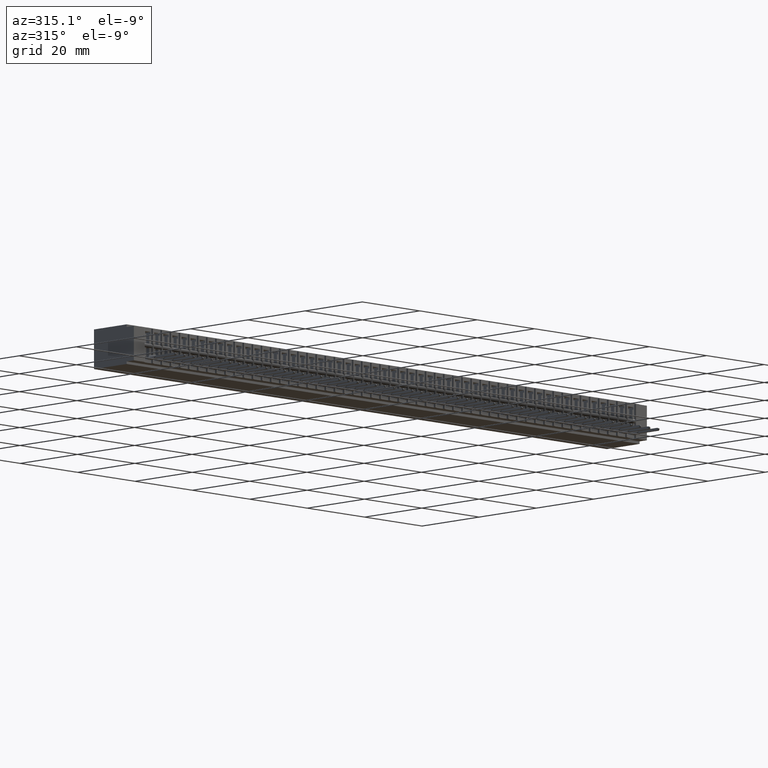
[diagram: clean part render]
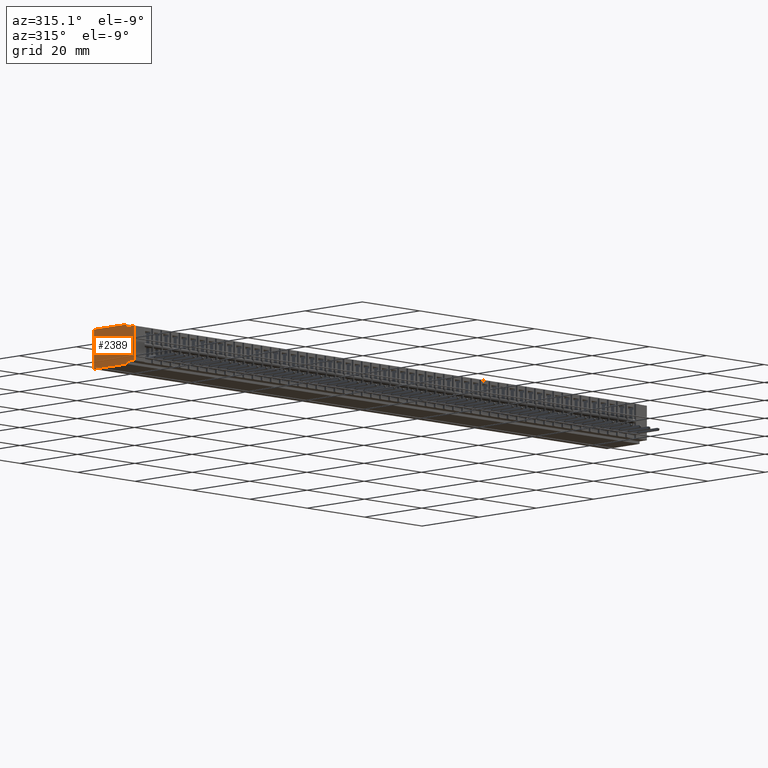
[diagram: same view with one face highlighted and labeled with its STEP entity id]
A machine part, auxiliary view. The second image highlights one B-rep face of the part: STEP entity #2389.
In plain terms, the highlighted planar face has unit normal (1, 0, 0).
Its self-contained STEP definition (entity closure, byte-faithful):
#2234 = EDGE_CURVE ( 'NONE', #74896, #15088, #69660, .T. ) ;
#2389 = ADVANCED_FACE ( 'NONE', ( #36871 ), #19117, .F. ) ;
#5764 = DIRECTION ( 'NONE',  ( 1.000000000000000000, -0.0000000000000000000, 0.0000000000000000000 ) ) ;
#6501 = ORIENTED_EDGE ( 'NONE', *, *, #11065, .F. ) ;
#6532 = LINE ( 'NONE', #67930, #53579 ) ;
#7781 = VECTOR ( 'NONE', #62964, 39.37007874015748143 ) ;
#8674 = CARTESIAN_POINT ( 'NONE',  ( 0.0000000000000000000, 0.0000000000000000000, 0.0000000000000000000 ) ) ;
#9637 = CARTESIAN_POINT ( 'NONE',  ( 0.0000000000000000000, 0.1000000000000000056, -0.02500000000000000486 ) ) ;
#11065 = EDGE_CURVE ( 'NONE', #69570, #74896, #31848, .T. ) ;
#11125 = ORIENTED_EDGE ( 'NONE', *, *, #40583, .F. ) ;
#15088 = VERTEX_POINT ( 'NONE', #70111 ) ;
#15451 = CARTESIAN_POINT ( 'NONE',  ( 0.0000000000000000000, 0.0000000000000000000, -0.02500000000000000486 ) ) ;
#15519 = VERTEX_POINT ( 'NONE', #38536 ) ;
#15993 = VECTOR ( 'NONE', #19999, 39.37007874015748143 ) ;
#19117 = PLANE ( 'NONE',  #41749 ) ;
#19465 = DIRECTION ( 'NONE',  ( -0.0000000000000000000, -1.000000000000000000, -0.0000000000000000000 ) ) ;
#19793 = VERTEX_POINT ( 'NONE', #71211 ) ;
#19999 = DIRECTION ( 'NONE',  ( -0.0000000000000000000, -1.000000000000000000, -0.0000000000000000000 ) ) ;
#20318 = CARTESIAN_POINT ( 'NONE',  ( 0.0000000000000000000, 0.5500000000000000444, 0.0000000000000000000 ) ) ;
#24053 = VERTEX_POINT ( 'NONE', #63391 ) ;
#28088 = ORIENTED_EDGE ( 'NONE', *, *, #47890, .F. ) ;
#30402 = DIRECTION ( 'NONE',  ( 0.0000000000000000000, 0.0000000000000000000, -1.000000000000000000 ) ) ;
#31848 = LINE ( 'NONE', #75477, #7781 ) ;
#32325 = EDGE_CURVE ( 'NONE', #69570, #24053, #6532, .T. ) ;
#35529 = VERTEX_POINT ( 'NONE', #77187 ) ;
#36577 = VECTOR ( 'NONE', #73606, 39.37007874015748143 ) ;
#36871 = FACE_OUTER_BOUND ( 'NONE', #62307, .T. ) ;
#37310 = ORIENTED_EDGE ( 'NONE', *, *, #48752, .F. ) ;
#38536 = CARTESIAN_POINT ( 'NONE',  ( 0.0000000000000000000, 0.1000000000000000056, -0.3649999999999999911 ) ) ;
#38883 = LINE ( 'NONE', #15451, #40630 ) ;
#40573 = CARTESIAN_POINT ( 'NONE',  ( 0.0000000000000000000, 0.5500000000000000444, -0.3900000000000000133 ) ) ;
#40583 = EDGE_CURVE ( 'NONE', #15088, #50752, #59791, .T. ) ;
#40630 = VECTOR ( 'NONE', #63534, 39.37007874015748143 ) ;
#41749 = AXIS2_PLACEMENT_3D ( 'NONE', #56267, #5764, #30402 ) ;
#43090 = LINE ( 'NONE', #54402, #57174 ) ;
#47890 = EDGE_CURVE ( 'NONE', #19793, #15519, #43090, .T. ) ;
#48057 = DIRECTION ( 'NONE',  ( 0.0000000000000000000, 0.0000000000000000000, -1.000000000000000000 ) ) ;
#48752 = EDGE_CURVE ( 'NONE', #15519, #24053, #53829, .T. ) ;
#50752 = VERTEX_POINT ( 'NONE', #9637 ) ;
#51330 = EDGE_CURVE ( 'NONE', #19793, #35529, #75360, .T. ) ;
#53579 = VECTOR ( 'NONE', #19465, 39.37007874015748143 ) ;
#53829 = LINE ( 'NONE', #61087, #36577 ) ;
#54402 = CARTESIAN_POINT ( 'NONE',  ( 0.0000000000000000000, 0.0000000000000000000, -0.3649999999999999911 ) ) ;
#54928 = ORIENTED_EDGE ( 'NONE', *, *, #65044, .F. ) ;
#55324 = CARTESIAN_POINT ( 'NONE',  ( 0.0000000000000000000, 0.1000000000000000056, 0.0000000000000000000 ) ) ;
#56267 = CARTESIAN_POINT ( 'NONE',  ( 0.0000000000000000000, 0.5500000000000000444, 0.0000000000000000000 ) ) ;
#57174 = VECTOR ( 'NONE', #72990, 39.37007874015748143 ) ;
#57509 = VECTOR ( 'NONE', #57961, 39.37007874015748143 ) ;
#57808 = ORIENTED_EDGE ( 'NONE', *, *, #51330, .T. ) ;
#57961 = DIRECTION ( 'NONE',  ( -0.0000000000000000000, -0.0000000000000000000, 1.000000000000000000 ) ) ;
#59448 = VECTOR ( 'NONE', #48057, 39.37007874015748143 ) ;
#59791 = LINE ( 'NONE', #55324, #59448 ) ;
#61087 = CARTESIAN_POINT ( 'NONE',  ( 0.0000000000000000000, 0.1000000000000000056, -0.3900000000000000133 ) ) ;
#61310 = ORIENTED_EDGE ( 'NONE', *, *, #2234, .F. ) ;
#62307 = EDGE_LOOP ( 'NONE', ( #57808, #54928, #11125, #61310, #6501, #77121, #37310, #28088 ) ) ;
#62964 = DIRECTION ( 'NONE',  ( -0.0000000000000000000, -0.0000000000000000000, 1.000000000000000000 ) ) ;
#63391 = CARTESIAN_POINT ( 'NONE',  ( 0.0000000000000000000, 0.1000000000000000056, -0.3900000000000000133 ) ) ;
#63534 = DIRECTION ( 'NONE',  ( -0.0000000000000000000, -1.000000000000000000, -0.0000000000000000000 ) ) ;
#65044 = EDGE_CURVE ( 'NONE', #50752, #35529, #38883, .T. ) ;
#67930 = CARTESIAN_POINT ( 'NONE',  ( 0.0000000000000000000, 0.5500000000000000444, -0.3900000000000000133 ) ) ;
#69570 = VERTEX_POINT ( 'NONE', #40573 ) ;
#69660 = LINE ( 'NONE', #75341, #15993 ) ;
#70111 = CARTESIAN_POINT ( 'NONE',  ( 0.0000000000000000000, 0.1000000000000000056, 0.0000000000000000000 ) ) ;
#71211 = CARTESIAN_POINT ( 'NONE',  ( 0.0000000000000000000, 0.0000000000000000000, -0.3649999999999999911 ) ) ;
#72990 = DIRECTION ( 'NONE',  ( 0.0000000000000000000, 1.000000000000000000, 0.0000000000000000000 ) ) ;
#73606 = DIRECTION ( 'NONE',  ( -0.0000000000000000000, -0.0000000000000000000, -1.000000000000000000 ) ) ;
#74896 = VERTEX_POINT ( 'NONE', #20318 ) ;
#75341 = CARTESIAN_POINT ( 'NONE',  ( 0.0000000000000000000, 0.5500000000000000444, 0.0000000000000000000 ) ) ;
#75360 = LINE ( 'NONE', #8674, #57509 ) ;
#75477 = CARTESIAN_POINT ( 'NONE',  ( 0.0000000000000000000, 0.5500000000000000444, 0.0000000000000000000 ) ) ;
#77121 = ORIENTED_EDGE ( 'NONE', *, *, #32325, .T. ) ;
#77187 = CARTESIAN_POINT ( 'NONE',  ( 0.0000000000000000000, 0.0000000000000000000, -0.02500000000000000486 ) ) ;